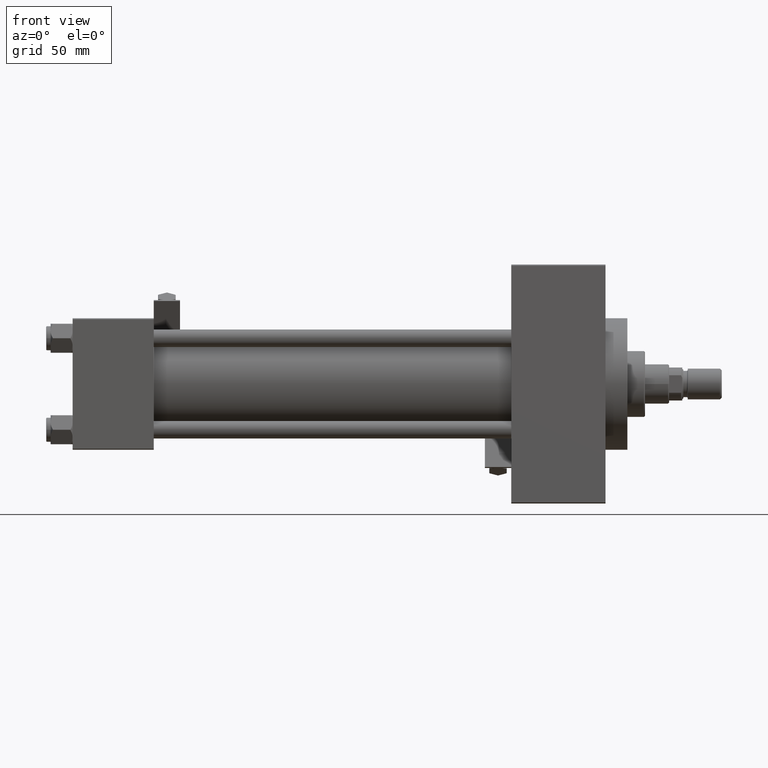
[diagram: clean part render]
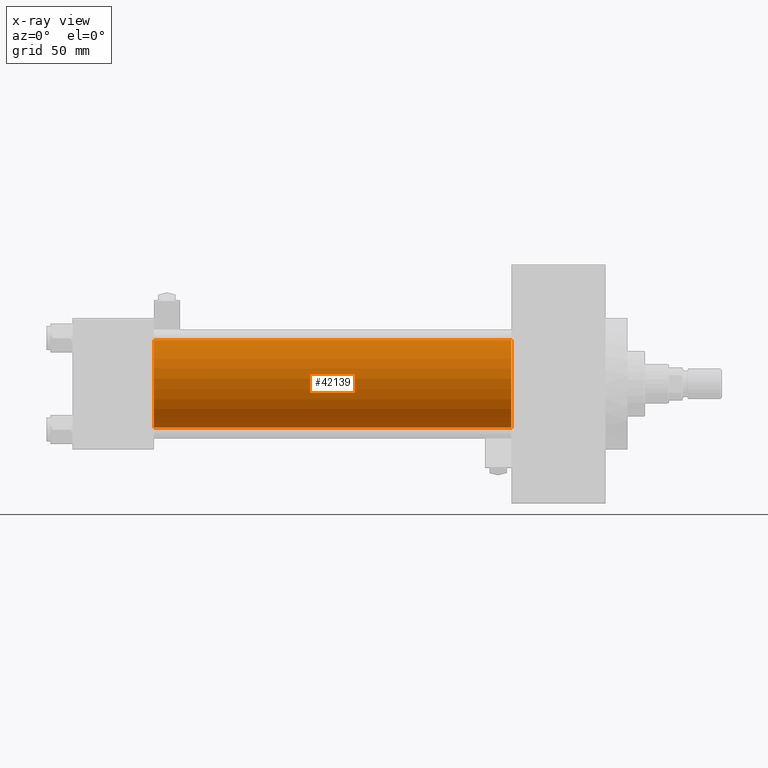
[diagram: x-ray — body ghosted, one internal face saturated and labeled with its STEP entity id]
A machine part, front view, then the same camera in x-ray: the body is ghosted and one INTERNAL B-rep face — a face not visible from any outside direction — is saturated and labeled: STEP entity #42139.
In plain terms, the highlighted cylindrical surface (partial cylindrical patch) has radius 20 mm, axis along (-1, -0, -0).
Its self-contained STEP definition (entity closure, byte-faithful):
#1611 = VERTEX_POINT ( 'NONE', #44512 ) ;
#1902 = FACE_OUTER_BOUND ( 'NONE', #21554, .T. ) ;
#8143 = AXIS2_PLACEMENT_3D ( 'NONE', #14234, #45071, #40988 ) ;
#9125 = CARTESIAN_POINT ( 'NONE',  ( 37.00000000000000000, -1.527916156705042519E-16, -20.00000000000000000 ) ) ;
#9584 = VECTOR ( 'NONE', #17613, 1000.000000000000000 ) ;
#10499 = DIRECTION ( 'NONE',  ( -1.000000000000000000, -0.000000000000000000, -0.000000000000000000 ) ) ;
#10814 = VERTEX_POINT ( 'NONE', #17569 ) ;
#12002 = EDGE_CURVE ( 'NONE', #1611, #10814, #33943, .T. ) ;
#13851 = VERTEX_POINT ( 'NONE', #48458 ) ;
#14234 = CARTESIAN_POINT ( 'NONE',  ( 200.0000000000000000, -2.602085213965210642E-15, 0.000000000000000000 ) ) ;
#15399 = AXIS2_PLACEMENT_3D ( 'NONE', #24860, #21028, #40566 ) ;
#15805 = VECTOR ( 'NONE', #10499, 1000.000000000000000 ) ;
#17569 = CARTESIAN_POINT ( 'NONE',  ( 200.0000000000000000, -1.527916156705042519E-16, -20.00000000000000000 ) ) ;
#17613 = DIRECTION ( 'NONE',  ( -1.000000000000000000, -0.000000000000000000, -0.000000000000000000 ) ) ;
#18205 = LINE ( 'NONE', #33621, #15805 ) ;
#21028 = DIRECTION ( 'NONE',  ( 1.000000000000000000, 0.000000000000000000, 0.000000000000000000 ) ) ;
#21554 = EDGE_LOOP ( 'NONE', ( #37050, #21873, #50642, #21765 ) ) ;
#21765 = ORIENTED_EDGE ( 'NONE', *, *, #49653, .F. ) ;
#21873 = ORIENTED_EDGE ( 'NONE', *, *, #33583, .T. ) ;
#22220 = LINE ( 'NONE', #36912, #9584 ) ;
#22875 = DIRECTION ( 'NONE',  ( 1.000000000000000000, 0.000000000000000000, 0.000000000000000000 ) ) ;
#24860 = CARTESIAN_POINT ( 'NONE',  ( 37.00000000000000000, -2.602085213965210642E-15, 0.000000000000000000 ) ) ;
#25285 = CYLINDRICAL_SURFACE ( 'NONE', #8143, 20.00000000000000000 ) ;
#28659 = VERTEX_POINT ( 'NONE', #9125 ) ;
#33583 = EDGE_CURVE ( 'NONE', #10814, #28659, #22220, .T. ) ;
#33621 = CARTESIAN_POINT ( 'NONE',  ( 200.0000000000000000, -2.602085213965210642E-15, 20.00000000000000000 ) ) ;
#33943 = CIRCLE ( 'NONE', #45452, 20.00000000000000000 ) ;
#34968 = DIRECTION ( 'NONE',  ( 0.000000000000000000, 0.000000000000000000, -1.000000000000000000 ) ) ;
#35957 = EDGE_CURVE ( 'NONE', #13851, #28659, #40857, .T. ) ;
#36912 = CARTESIAN_POINT ( 'NONE',  ( 200.0000000000000000, -1.527916156705042519E-16, -20.00000000000000000 ) ) ;
#37050 = ORIENTED_EDGE ( 'NONE', *, *, #12002, .T. ) ;
#38565 = CARTESIAN_POINT ( 'NONE',  ( 200.0000000000000000, -2.602085213965210642E-15, 0.000000000000000000 ) ) ;
#40566 = DIRECTION ( 'NONE',  ( 0.000000000000000000, 0.000000000000000000, -1.000000000000000000 ) ) ;
#40857 = CIRCLE ( 'NONE', #15399, 20.00000000000000000 ) ;
#40988 = DIRECTION ( 'NONE',  ( 0.000000000000000000, 0.000000000000000000, 1.000000000000000000 ) ) ;
#42139 = ADVANCED_FACE ( 'NONE', ( #1902 ), #25285, .F. ) ;
#44512 = CARTESIAN_POINT ( 'NONE',  ( 200.0000000000000000, -2.602085213965210642E-15, 20.00000000000000000 ) ) ;
#45071 = DIRECTION ( 'NONE',  ( -1.000000000000000000, -0.000000000000000000, -0.000000000000000000 ) ) ;
#45452 = AXIS2_PLACEMENT_3D ( 'NONE', #38565, #22875, #34968 ) ;
#48458 = CARTESIAN_POINT ( 'NONE',  ( 37.00000000000000000, -2.602085213965210642E-15, 20.00000000000000000 ) ) ;
#49653 = EDGE_CURVE ( 'NONE', #1611, #13851, #18205, .T. ) ;
#50642 = ORIENTED_EDGE ( 'NONE', *, *, #35957, .F. ) ;